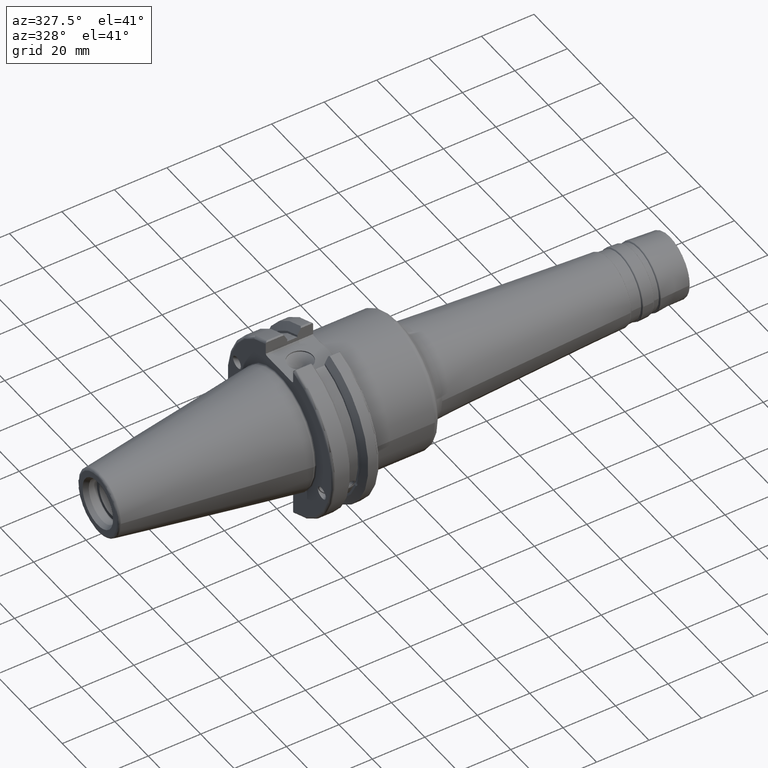
[diagram: clean part render]
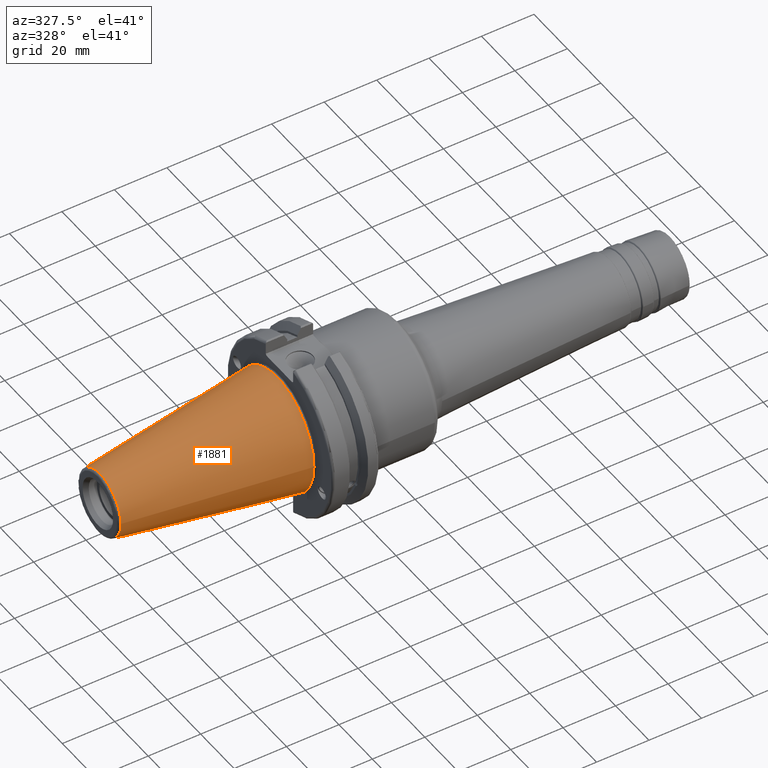
[diagram: same view with one face highlighted and labeled with its STEP entity id]
A machine part, auxiliary view. The second image highlights one B-rep face of the part: STEP entity #1881.
In plain terms, the highlighted conical surface has half-angle 8.297 deg.
Its self-contained STEP definition (entity closure, byte-faithful):
#261=FACE_OUTER_BOUND('',#379,.T.);
#379=EDGE_LOOP('',(#1656,#1657,#1658,#1659,#1660));
#489=LINE('',#3672,#585);
#585=VECTOR('',#2678,17.2484375);
#706=CIRCLE('',#2132,12.3966635780937);
#707=CIRCLE('',#2133,12.3966635780937);
#711=CIRCLE('',#2139,22.225);
#902=VERTEX_POINT('',#3659);
#903=VERTEX_POINT('',#3660);
#906=VERTEX_POINT('',#3670);
#1169=EDGE_CURVE('',#902,#903,#706,.T.);
#1170=EDGE_CURVE('',#903,#902,#707,.T.);
#1174=EDGE_CURVE('',#906,#906,#711,.T.);
#1175=EDGE_CURVE('',#906,#903,#489,.T.);
#1656=ORIENTED_EDGE('',*,*,#1174,.F.);
#1657=ORIENTED_EDGE('',*,*,#1175,.T.);
#1658=ORIENTED_EDGE('',*,*,#1169,.F.);
#1659=ORIENTED_EDGE('',*,*,#1170,.F.);
#1660=ORIENTED_EDGE('',*,*,#1175,.F.);
#1797=CONICAL_SURFACE('',#2138,17.2484375,0.144812498238939);
#1881=ADVANCED_FACE('',(#261),#1797,.T.);
#2132=AXIS2_PLACEMENT_3D('',#3661,#2662,#2663);
#2133=AXIS2_PLACEMENT_3D('',#3662,#2664,#2665);
#2138=AXIS2_PLACEMENT_3D('',#3669,#2674,#2675);
#2139=AXIS2_PLACEMENT_3D('',#3671,#2676,#2677);
#2662=DIRECTION('center_axis',(-1.,0.,0.));
#2663=DIRECTION('ref_axis',(0.,-1.,3.06161699786838E-17));
#2664=DIRECTION('center_axis',(-1.,0.,0.));
#2665=DIRECTION('ref_axis',(0.,-1.,3.06161699786838E-17));
#2674=DIRECTION('center_axis',(1.,0.,0.));
#2675=DIRECTION('ref_axis',(0.,1.,0.));
#2676=DIRECTION('center_axis',(1.,0.,0.));
#2677=DIRECTION('ref_axis',(0.,0.,-1.));
#2678=DIRECTION('',(-0.989532981063282,0.144306893071729,1.76724974695192E-17));
#3659=CARTESIAN_POINT('',(-67.3943068930717,-1.5181534371019E-15,12.3966635780937));
#3660=CARTESIAN_POINT('',(-67.3943068930718,-12.3966635780937,-1.5181534371019E-15));
#3661=CARTESIAN_POINT('Origin',(-67.3943068930717,0.,-1.89769179637738E-15));
#3662=CARTESIAN_POINT('Origin',(-67.3943068930717,0.,-1.89769179637738E-15));
#3669=CARTESIAN_POINT('Origin',(-34.125,0.,0.));
#3670=CARTESIAN_POINT('',(0.,-22.225,-2.72177751110499E-15));
#3671=CARTESIAN_POINT('Origin',(0.,0.,0.));
#3672=CARTESIAN_POINT('',(-34.125,-17.2484375,-2.11232437746682E-15));